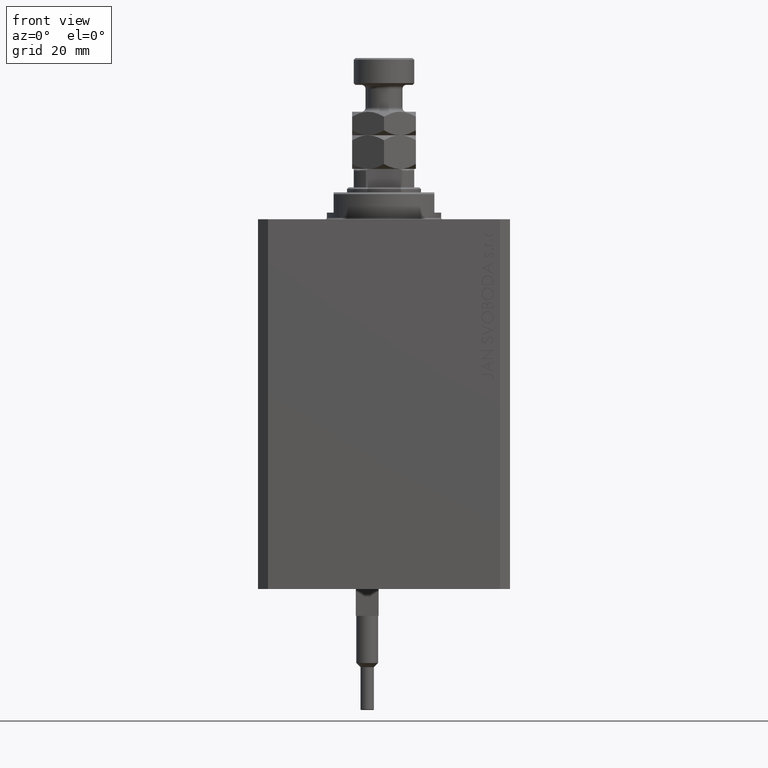
[diagram: clean part render]
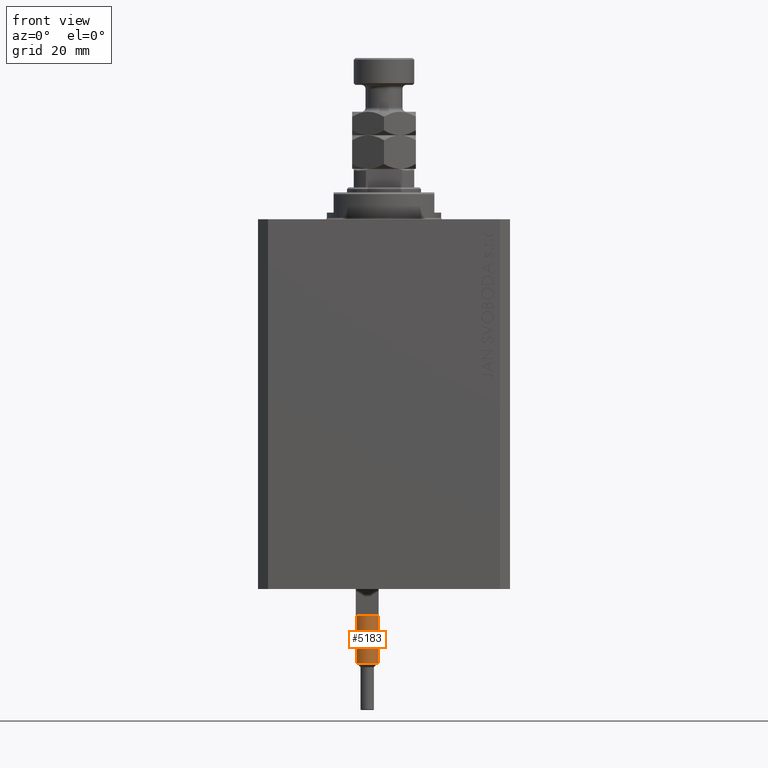
[diagram: same view with one face highlighted and labeled with its STEP entity id]
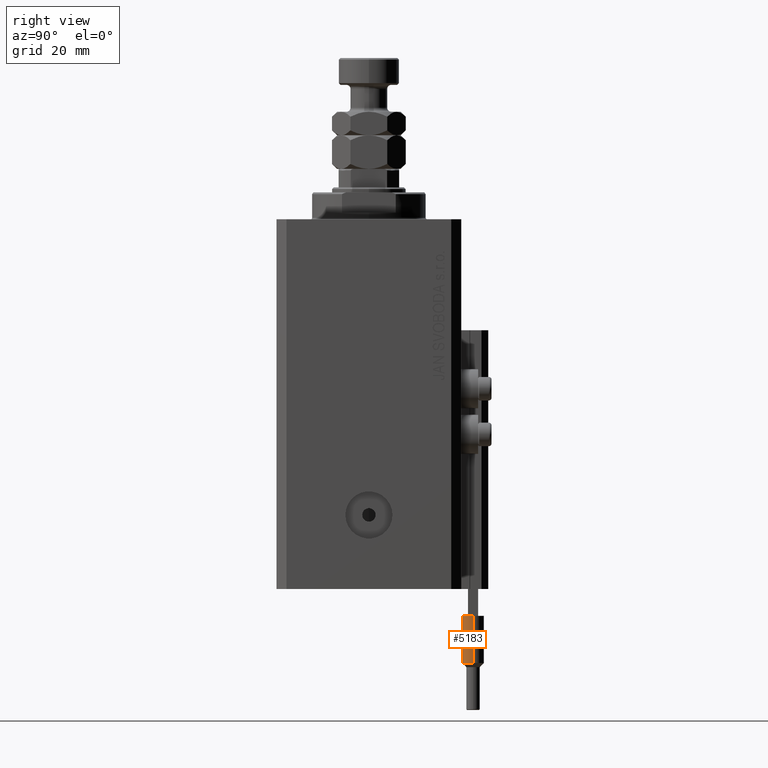
[diagram: same view with one face highlighted and labeled with its STEP entity id]
A machine part, front view. The second image highlights one B-rep face of the part: STEP entity #5183.
A second angle (right view) of the same face is appended — the face is thin or edge-on in the first view.
In plain terms, the highlighted cylindrical surface (edge-blend (fillet) strip) has radius 3.25 mm, axis along (-0, -0, 1).
Its self-contained STEP definition (entity closure, byte-faithful):
#2171 = DIRECTION ( 'NONE',  ( -1.000000000000000000, 0.000000000000000000, 0.000000000000000000 ) ) ;
#3145 = DIRECTION ( 'NONE',  ( 0.000000000000000000, 0.000000000000000000, -1.000000000000000000 ) ) ;
#3634 = ORIENTED_EDGE ( 'NONE', *, *, #9214, .T. ) ;
#3936 = VECTOR ( 'NONE', #6747, 1000.000000000000000 ) ;
#5183 = ADVANCED_FACE ( 'NONE', ( #36555 ), #29269, .T. ) ;
#5686 = ORIENTED_EDGE ( 'NONE', *, *, #29263, .T. ) ;
#6197 = DIRECTION ( 'NONE',  ( -0.000000000000000000, -0.000000000000000000, -1.000000000000000000 ) ) ;
#6747 = DIRECTION ( 'NONE',  ( -0.000000000000000000, -0.000000000000000000, -1.000000000000000000 ) ) ;
#7914 = AXIS2_PLACEMENT_3D ( 'NONE', #14554, #32631, #13572 ) ;
#8996 = CARTESIAN_POINT ( 'NONE',  ( -3.250000000000000444, 0.000000000000000000, 53.99999999999998579 ) ) ;
#9214 = EDGE_CURVE ( 'NONE', #31280, #21134, #11134, .T. ) ;
#9608 = VERTEX_POINT ( 'NONE', #35031 ) ;
#9951 = CARTESIAN_POINT ( 'NONE',  ( 0.000000000000000000, 0.000000000000000000, 56.00000000000000000 ) ) ;
#10387 = ORIENTED_EDGE ( 'NONE', *, *, #30151, .F. ) ;
#11134 = CIRCLE ( 'NONE', #7914, 3.250000000000000444 ) ;
#11171 = DIRECTION ( 'NONE',  ( 0.000000000000000000, 0.000000000000000000, 1.000000000000000000 ) ) ;
#11688 = AXIS2_PLACEMENT_3D ( 'NONE', #9951, #6197, #2171 ) ;
#12117 = CARTESIAN_POINT ( 'NONE',  ( -2.883140648667699146, 1.500000000000000000, 40.00000000000000000 ) ) ;
#12359 = VERTEX_POINT ( 'NONE', #8996 ) ;
#13322 = EDGE_LOOP ( 'NONE', ( #15949, #27500, #22913, #3634, #5686, #10387 ) ) ;
#13572 = DIRECTION ( 'NONE',  ( 1.000000000000000000, 0.000000000000000000, 0.000000000000000000 ) ) ;
#14554 = CARTESIAN_POINT ( 'NONE',  ( 0.000000000000000000, 0.000000000000000000, 40.00000000000000000 ) ) ;
#14691 = DIRECTION ( 'NONE',  ( 1.000000000000000000, 0.000000000000000000, 0.000000000000000000 ) ) ;
#15949 = ORIENTED_EDGE ( 'NONE', *, *, #23529, .T. ) ;
#17245 = CARTESIAN_POINT ( 'NONE',  ( 2.883140648667699146, 1.500000000000000000, 40.00000000000000000 ) ) ;
#18463 = CARTESIAN_POINT ( 'NONE',  ( 0.000000000000000000, 0.000000000000000000, 40.00000000000000000 ) ) ;
#19819 = AXIS2_PLACEMENT_3D ( 'NONE', #43707, #40192, #40674 ) ;
#21134 = VERTEX_POINT ( 'NONE', #12117 ) ;
#22265 = CARTESIAN_POINT ( 'NONE',  ( -3.250000000000000444, 0.000000000000000000, 56.00000000000000000 ) ) ;
#22913 = ORIENTED_EDGE ( 'NONE', *, *, #24119, .T. ) ;
#23529 = EDGE_CURVE ( 'NONE', #12359, #30744, #24582, .T. ) ;
#24119 = EDGE_CURVE ( 'NONE', #9608, #31280, #41452, .T. ) ;
#24390 = AXIS2_PLACEMENT_3D ( 'NONE', #18463, #11171, #14691 ) ;
#24582 = CIRCLE ( 'NONE', #30988, 3.250000000000000444 ) ;
#25809 = CARTESIAN_POINT ( 'NONE',  ( 3.250000000000000444, 3.980102097228898231E-16, 56.00000000000000000 ) ) ;
#27500 = ORIENTED_EDGE ( 'NONE', *, *, #43595, .T. ) ;
#29263 = EDGE_CURVE ( 'NONE', #21134, #39103, #33208, .T. ) ;
#29269 = CYLINDRICAL_SURFACE ( 'NONE', #11688, 3.250000000000000444 ) ;
#30151 = EDGE_CURVE ( 'NONE', #12359, #39103, #37595, .T. ) ;
#30744 = VERTEX_POINT ( 'NONE', #49463 ) ;
#30988 = AXIS2_PLACEMENT_3D ( 'NONE', #37518, #3145, #32523 ) ;
#31280 = VERTEX_POINT ( 'NONE', #17245 ) ;
#32523 = DIRECTION ( 'NONE',  ( 1.000000000000000000, 0.000000000000000000, 0.000000000000000000 ) ) ;
#32631 = DIRECTION ( 'NONE',  ( 0.000000000000000000, 0.000000000000000000, 1.000000000000000000 ) ) ;
#33208 = CIRCLE ( 'NONE', #24390, 3.250000000000000444 ) ;
#34853 = VECTOR ( 'NONE', #48912, 1000.000000000000000 ) ;
#35031 = CARTESIAN_POINT ( 'NONE',  ( 3.250000000000000444, 3.980102097228898231E-16, 40.00000000000000000 ) ) ;
#36555 = FACE_OUTER_BOUND ( 'NONE', #13322, .T. ) ;
#37361 = LINE ( 'NONE', #25809, #3936 ) ;
#37518 = CARTESIAN_POINT ( 'NONE',  ( 0.000000000000000000, 0.000000000000000000, 53.99999999999998579 ) ) ;
#37595 = LINE ( 'NONE', #22265, #34853 ) ;
#39103 = VERTEX_POINT ( 'NONE', #42533 ) ;
#40192 = DIRECTION ( 'NONE',  ( 0.000000000000000000, 0.000000000000000000, 1.000000000000000000 ) ) ;
#40674 = DIRECTION ( 'NONE',  ( 1.000000000000000000, 0.000000000000000000, 0.000000000000000000 ) ) ;
#41452 = CIRCLE ( 'NONE', #19819, 3.250000000000000444 ) ;
#42533 = CARTESIAN_POINT ( 'NONE',  ( -3.250000000000000444, 0.000000000000000000, 40.00000000000000000 ) ) ;
#43595 = EDGE_CURVE ( 'NONE', #30744, #9608, #37361, .T. ) ;
#43707 = CARTESIAN_POINT ( 'NONE',  ( 0.000000000000000000, 0.000000000000000000, 40.00000000000000000 ) ) ;
#48912 = DIRECTION ( 'NONE',  ( -0.000000000000000000, -0.000000000000000000, -1.000000000000000000 ) ) ;
#49463 = CARTESIAN_POINT ( 'NONE',  ( 3.250000000000000444, 3.980102097228898231E-16, 53.99999999999998579 ) ) ;